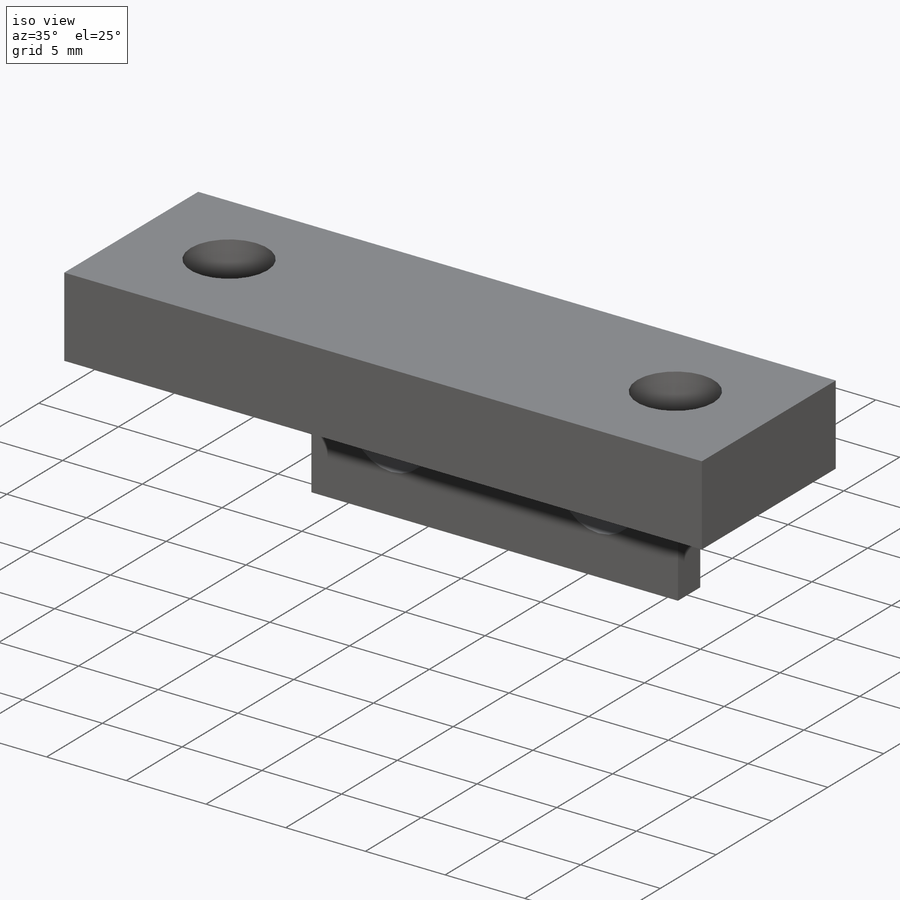
[diagram: iso view]
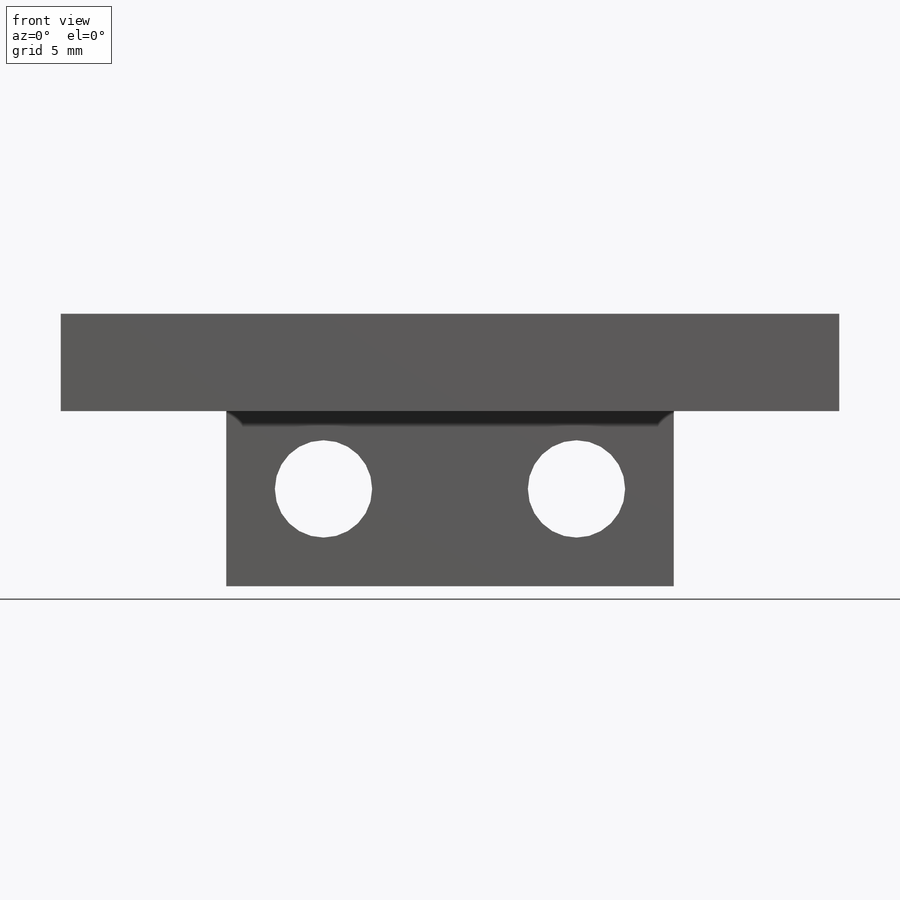
[diagram: front view]
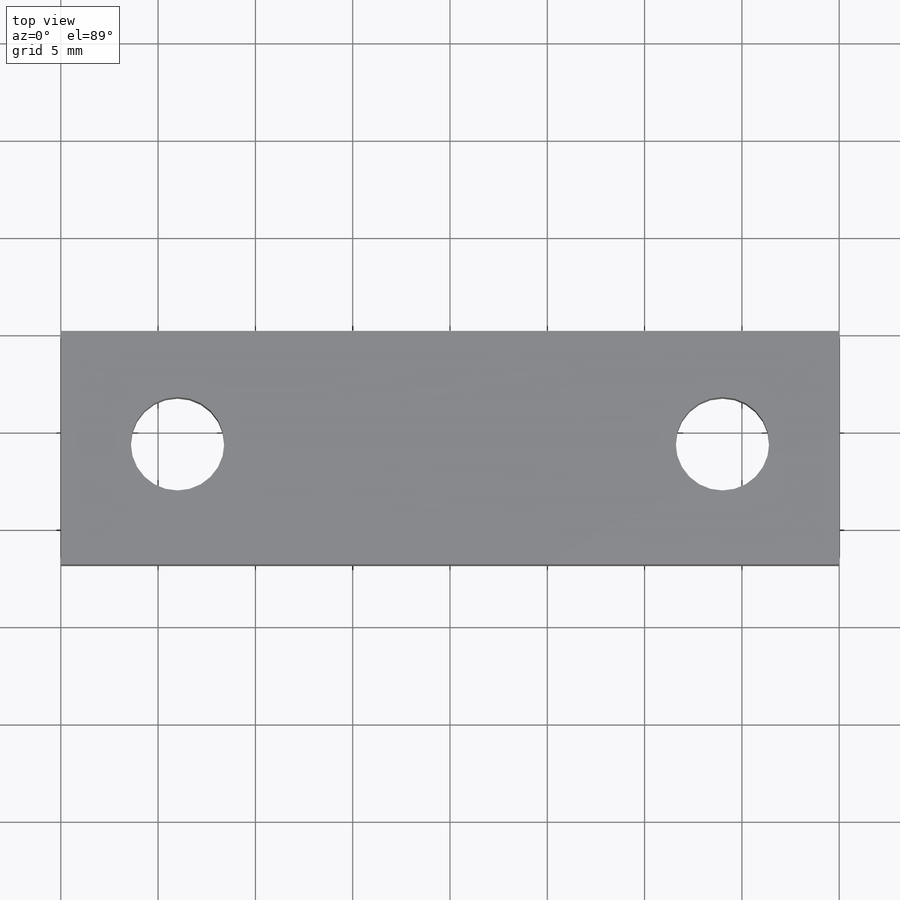
[diagram: top view]
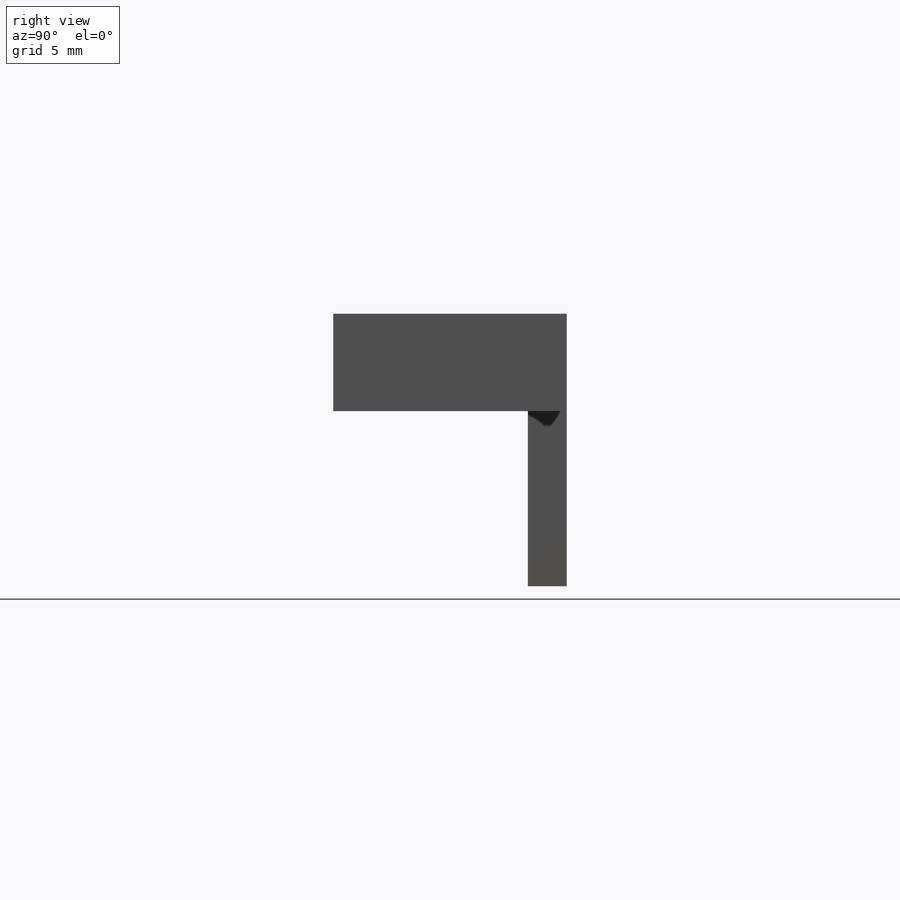
[diagram: right view]
SOLIDWORKS PART (.sldprt)
format: sldprt  version: not decoded by parser v0  size: 187,904 bytes
history: native  units: mm
features: sketch x4, plane x3, cut_extrude x3, material x1, extrude x1 (+10 scaffold rows collapsed)
feature tree (22):
  scaffold x10  (default folders/planes/origin — collapsed)
  material  "Matériau <non spécifié>"
  plane  "Plan de face"
  plane  "Plan de dessus"
  plane  "Plan de droite"
  sketch  "Esquisse1"  dims[D1=5.0mm D2=2.0mm D3=14.0mm D4=12.0mm]
  extrude  "Boss.-Extru.1"  Depth=40mm
  sketch  "Esquisse2"  dims[c1.D4=~4.369533mm c1.D5=4.8mm c1.D6=4.8mm c1.D1=6.0mm c1.D2=6.0mm c1.D3=5.8mm c2.D4=5.8mm]
  cut_extrude  "Enlèv. mat.-Extru.1"  Depth=40mm
  sketch  "Esquisse3"  dims[D1=23.0mm D2=8.5mm D3=8.5mm]
  cut_extrude  "Enlèv. mat.-Extru.2"  Depth=40mm
  sketch  "Esquisse4"  dims[c1.D1=5.0mm c1.D2=5.0mm c1.D4=5.0mm c1.D3=5.0mm c2.D4=5.0mm c2.D5=5.0mm c2.D6=5.0mm c3.D4=5.0mm]
  cut_extrude  "Enlèv. mat.-Extru.3"  Depth=40mm
decode coverage: 8 of 8 modeling features carry decoded parameters
note: ~ marks probable driven/reference dimensions
note: suppression state not decoded; provenance and decode notes live in map.json
